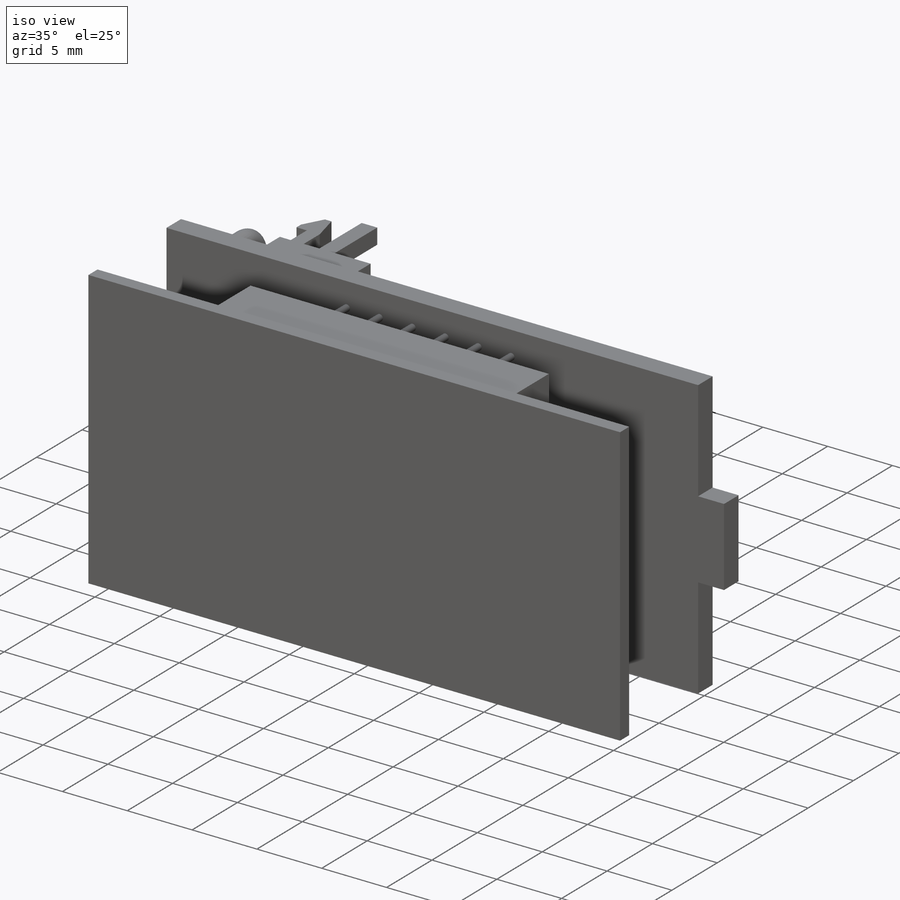
[diagram: iso view]
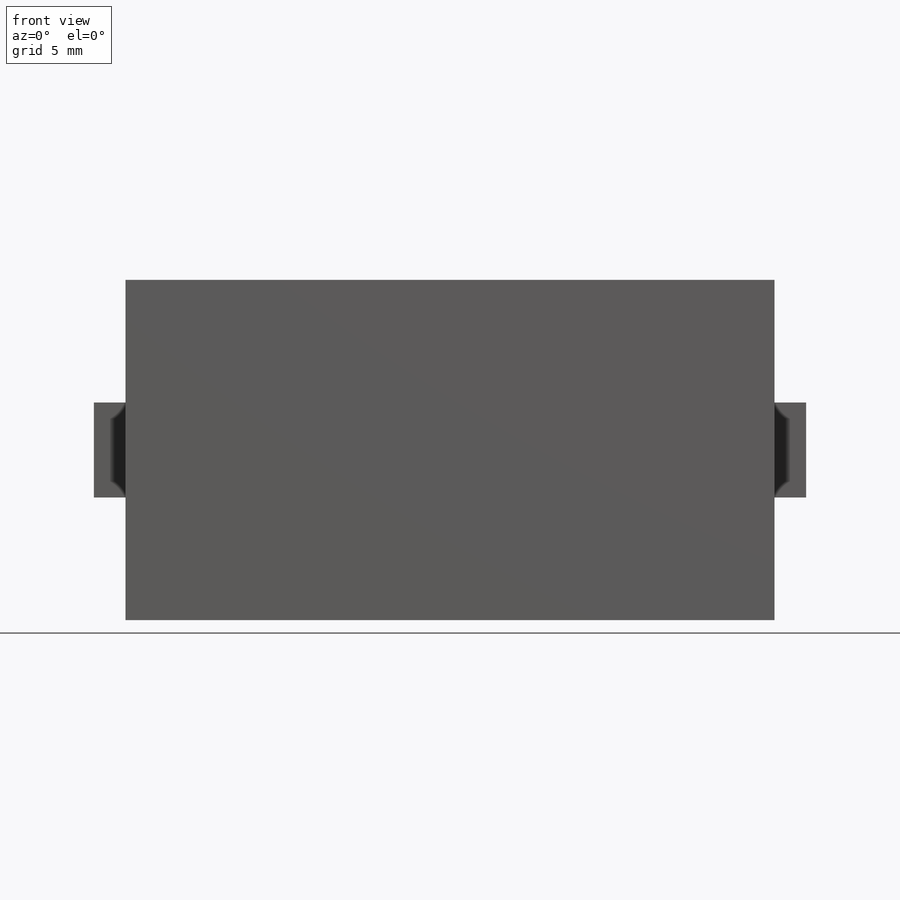
[diagram: front view]
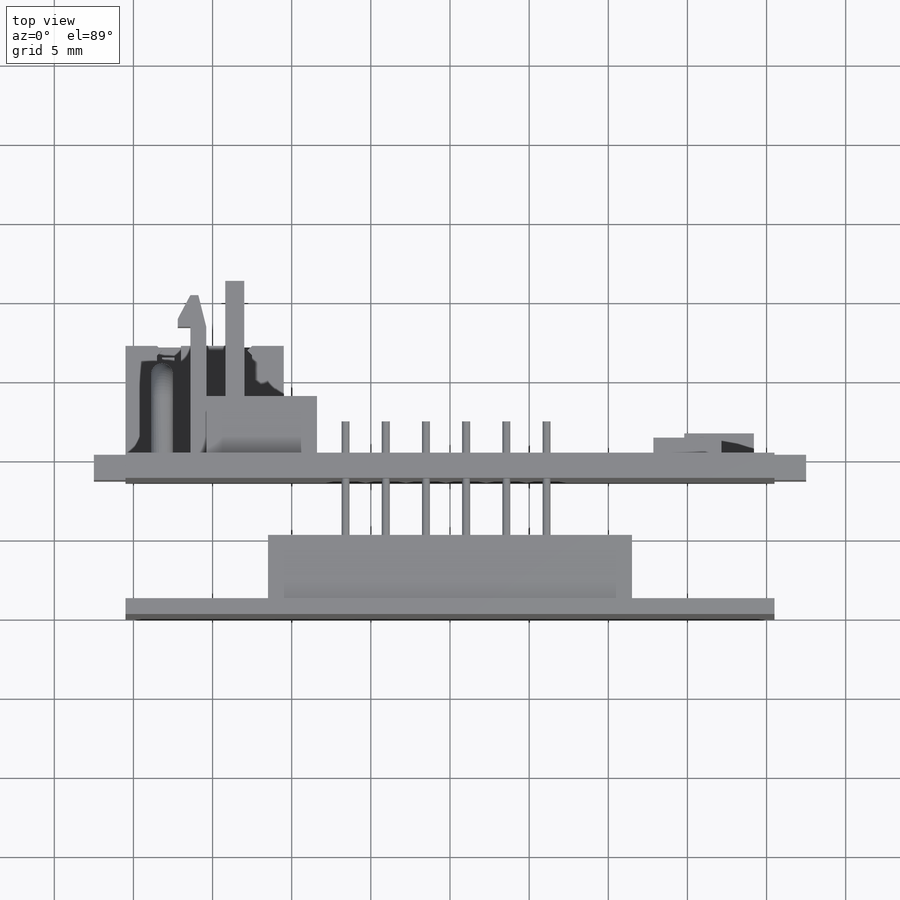
[diagram: top view]
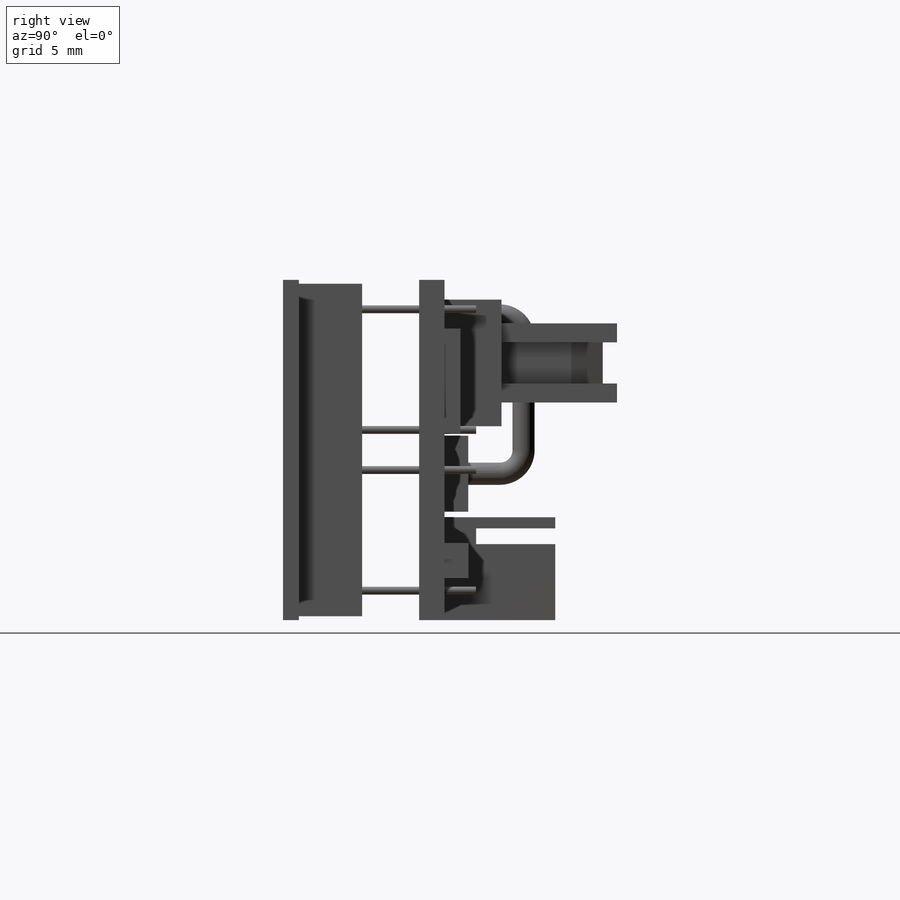
[diagram: right view]
SOLIDWORKS PART (.sldprt)
format: sldprt  version: not decoded by parser v0  size: 1,244,672 bytes
history: native  units: mm
features: sketch x21, extrude x14, plane x6, pattern_linear x3, cut_extrude x2, material x1, sweep x1 (+10 scaffold rows collapsed)
feature tree (58):
  scaffold x10  (default folders/planes/origin — collapsed)
  material  "Matériau <non spécifié>"
  plane  "Plan de face"
  plane  "Plan de dessus"
  plane  "Plan de droite"
  plane  "Plan1"  Offset=10.2mm
  sketch  "Esquisse1"  dims[c1.D1=~54.46473mm c1.D2=~80.708461mm c2.D1=~14.559878mm c2.D2=~13.301617mm c3.D1=~14.559878mm c3.D2=~10.066089mm c4.D1=41.0mm c4.D2=45.0mm c4.D3=6.0mm c4.D4=21.5mm]
  extrude  "Boss.-Extru.1"  Depth=1.6mm
  sketch  "Esquisse2"  dims[c1.D1=~13.93624mm c1.D2=~10.134947mm c2.D1=~43.067851mm c2.D2=~14.758158mm c3.D1=23.0mm c3.D2=21.0mm]
  extrude  "Boss.-Extru.2"  Depth=4mm
  sketch  "Esquisse5"  dims[c1.D1=7.5mm c1.D2=~1.831166mm c2.D2=~0.653988deg c3.D2=1.0mm c3.D3=0.3mm c3.D4=0.5mm c3.D5=0.5mm c4.D4=0.2mm c4.D5=1.0mm c4.D6=5.2mm c4.D7=~1.033531mm c5.D7=80.0deg c5.D8=5.0mm c5.D9=7.5mm]
  pattern_linear  "Répétition linéaire1"  Count1=3 Count2=2 Spacing1=7.5mm Spacing2=10mm
  sketch  "Esquisse4"  dims[D1=21.5mm D2=41.0mm]
  extrude  "Boss.-Extru.3"  Depth=1mm
  sketch  "Esquisse6"  dims[c1.D1=~12.94706mm c2.D1=50.0deg c2.D2=0.5mm c2.D3=4.0mm c2.D4=15.5mm c2.D5=3.2mm c2.D6=~0.464621mm c2.D7=~5.730325mm c3.D6=~0.681444mm c3.D7=~6.009098mm c4.D6=0.4mm c4.D7=0.4mm c4.D8=0.4mm c4.D9=3.5mm c4.D10=~2.420063mm c4.D11=~5.826077mm c5.D10=~1.165215mm c5.D11=~1.602877mm c6.D10=~0.911258mm c6.D11=~1.140558mm c7.D10=~1.038237mm c7.D11=~0.926197mm c8.D10=0.4mm c8.D11=~0.359925mm c8.D12=~2.104179mm c9.D11=0.5mm c9.D12=~0.359925mm]
  pattern_linear  "Ligne de séparation2"  [2 undecoded]
  sketch  "Esquisse7"  dims[D1=0.0mm]
  pattern_linear  "Ligne de séparation3"  [2 undecoded]
  sketch  "Esquisse8"  dims[c1.D1=~4.751012mm c1.D2=~5.105566mm c2.D1=8.0mm c2.D2=7.0mm c2.D3=5.5mm c2.D4=15.4mm]
  extrude  "Boss.-Extru.4"  Depth=3.6mm
  sketch  "Esquisse9"  dims[c1.D1=~1.110549mm c1.D2=~0.605754mm c2.D1=3.8mm c2.D2=5.2mm c2.D3=1.2mm c2.D4=1.2mm]
  extrude  "Boss.-Extru.5"  Depth=7.3mm
  plane  "Plan2"
  sketch  "Esquisse10"  dims[c1.D1=~19.842158mm c1.D2=~2.235638mm c2.D1=1.8mm c2.D2=10.0mm c2.D3=~1.300564mm c3.D2=10.0mm c3.D3=0.5mm c3.D4=1.0mm c3.D5=2.0mm c3.D6=0.5mm]
  extrude  "Boss.-Extru.6"  Depth=5mm
  sketch  "Esquisse11"  dims[c1.D1=~5.176476mm c1.D2=~5.60194mm c2.D1=10.0mm c2.D2=6.5mm]
  extrude  "Boss.-Extru.7"  Depth=7mm
  sketch  "Esquisse12"  dims[D1=0.7mm]
  cut_extrude  "Enlèv. mat.-Extru.1"  Depth=5.7mm
  sketch  "Esquisse13"  dims[c1.D1=0.7mm c1.D2=~1.684866mm c2.D1=3.0mm c2.D2=1.5mm c2.D3=~1.684753mm c2.D4=0.7mm c3.D3=1.0mm]
  cut_extrude  "Enlèv. mat.-Extru.2"  Depth=5mm
  sketch  "Esquisse14"  dims[c1.D1=~0.615755mm c1.D2=~0.808179mm c2.D1=~0.615755mm c2.D2=~0.788936mm c3.D1=2.7mm c3.D2=4.6mm c3.D3=0.6mm c3.D4=0.8mm]
  extrude  "Boss.-Extru.8"  Depth=5mm
  sketch  "Esquisse15"  dims[D1=1.4mm D2=10.0mm D3=18.2mm D4=3.5mm]
  plane  "Plan3"
  sketch  "Esquisse16"  dims[D2=1.5mm D1=5.0mm]
  sweep  "Balayage1"
  sketch  "Esquisse17"  dims[c1.D1=~6.649508mm c1.D2=~4.257307mm c2.D1=6.6mm c2.D2=4.3mm c2.D3=15.0mm c2.D4=1.05mm]
  extrude  "Boss.-Extru.9"  Depth=1mm
  sketch  "Esquisse18"  dims[c1.D1=~2.155041mm c1.D2=~5.047037mm c2.D1=4.4mm c2.D2=2.2mm c2.D3=14.8mm c2.D4=5.9mm]
  extrude  "Boss.-Extru.10"  Depth=1.5mm
  sketch  "Esquisse19"  dims[c1.D1=~4.579995mm c1.D2=~3.260059mm c2.D1=3.5mm c2.D2=4.8mm c2.D3=0.9mm c2.D4=10.8mm]
  extrude  "Boss.-Extru.11"  Depth=1.5mm
  sketch  "Esquisse20"  dims[c1.D1=0.3mm c1.D2=~0.744914mm c2.D2=45.0deg c2.D3=~0.536608mm c3.D3=45.0deg]
  extrude  "Boss.-Extru.12"  [1 undecoded]
  sketch  "Esquisse21"  dims[c1.D1=~0.794406mm c1.D6=0.5mm c2.D1=12.7mm c2.D2=10.16mm c2.D3=7.62mm c2.D4=2.54mm c2.D5=6.6mm]
  extrude  "Boss.-Extru.13"  Depth=2mm
  sketch  "Esquisse22"  dims[D1=~2.230907mm]
  extrude  "Boss.-Extru.14"  Depth=2mm
decode coverage: 37 of 41 modeling features carry decoded parameters
note: ~ marks probable driven/reference dimensions
note: 5 parameter values undecoded
note: suppression state not decoded; provenance and decode notes live in map.json
